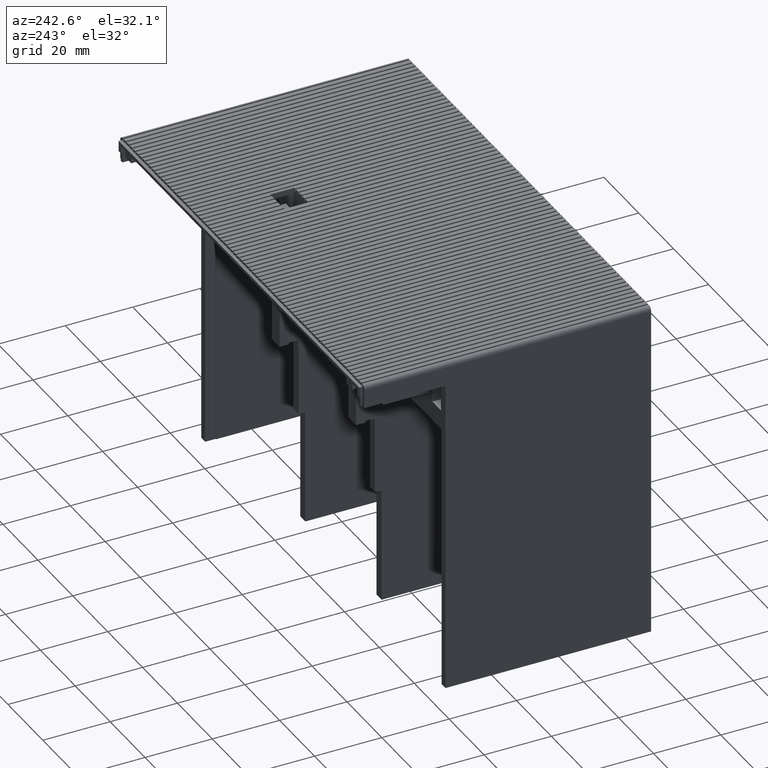
[diagram: clean part render]
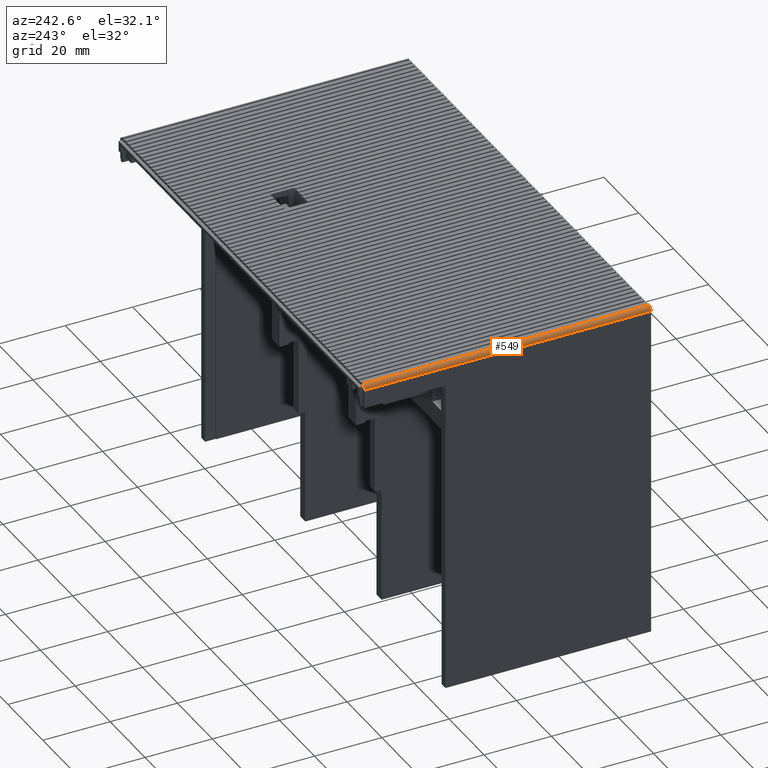
[diagram: same view with one face highlighted and labeled with its STEP entity id]
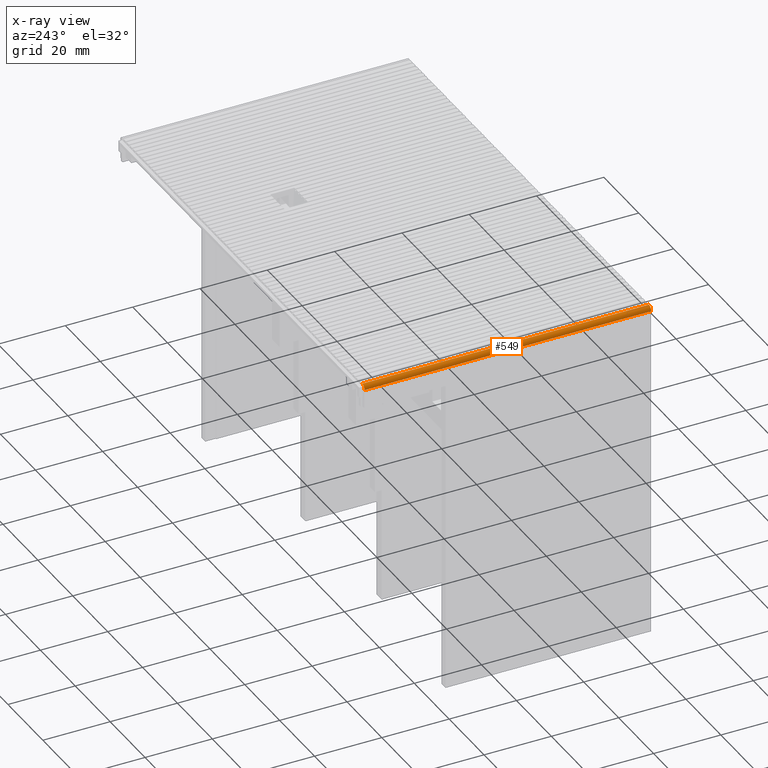
[diagram: x-ray of the same camera — body ghosted, the highlighted face saturated]
A machine part, auxiliary view. The second image highlights one B-rep face of the part: STEP entity #549.
The next image is the same camera in x-ray: the body ghosted, the highlighted face saturated — about 0% of this face is hidden behind the body in this view.
In plain terms, the highlighted cylindrical surface (edge-blend (fillet) strip) has radius 1.3 mm, axis along (-0, -1, -0).
Its self-contained STEP definition (entity closure, byte-faithful):
#549 = ADVANCED_FACE( '', ( #1574 ), #1575, .T. );
#1574 = FACE_OUTER_BOUND( '', #3084, .T. );
#1575 = CYLINDRICAL_SURFACE( '', #3085, 1.30000000000000 );
#3084 = EDGE_LOOP( '', ( #4660, #4661, #4662, #4663 ) );
#3085 = AXIS2_PLACEMENT_3D( '', #4664, #4665, #4666 );
#4660 = ORIENTED_EDGE( '', *, *, #9588, .F. );
#4661 = ORIENTED_EDGE( '', *, *, #9589, .F. );
#4662 = ORIENTED_EDGE( '', *, *, #9590, .T. );
#4663 = ORIENTED_EDGE( '', *, *, #9591, .T. );
#4664 = CARTESIAN_POINT( '', ( -68.7000000000000, -85.2000000000000, -1.30000000000001 ) );
#4665 = DIRECTION( '', ( -0.000000000000000, -1.00000000000000, -0.000000000000000 ) );
#4666 = DIRECTION( '', ( 0.000000000000000, -0.000000000000000, 1.00000000000000 ) );
#9588 = EDGE_CURVE( '', #11634, #11635, #11636, .T. );
#9589 = EDGE_CURVE( '', #11637, #11634, #11638, .T. );
#9590 = EDGE_CURVE( '', #11637, #11639, #11640, .T. );
#9591 = EDGE_CURVE( '', #11639, #11635, #11641, .T. );
#11634 = VERTEX_POINT( '', #14674 );
#11635 = VERTEX_POINT( '', #14675 );
#11636 = CIRCLE( '', #14676, 1.30000000000000 );
#11637 = VERTEX_POINT( '', #14677 );
#11638 = LINE( '', #14678, #14679 );
#11639 = VERTEX_POINT( '', #14680 );
#11640 = CIRCLE( '', #14681, 1.30000000000000 );
#11641 = LINE( '', #14682, #14683 );
#14674 = CARTESIAN_POINT( '', ( -70.0000000000000, 0.000000000000000, -1.30000000000000 ) );
#14675 = CARTESIAN_POINT( '', ( -68.7000000000000, 0.000000000000000, -1.06251812903579E-14 ) );
#14676 = AXIS2_PLACEMENT_3D( '', #19002, #19003, #19004 );
#14677 = CARTESIAN_POINT( '', ( -70.0000000000000, -85.2000000000000, -1.30000000000000 ) );
#14678 = CARTESIAN_POINT( '', ( -70.0000000000000, -85.2000000000000, -1.30000000000000 ) );
#14679 = VECTOR( '', #19005, 1000.00000000000 );
#14680 = CARTESIAN_POINT( '', ( -68.7000000000000, -85.2000000000000, -1.06251812903579E-14 ) );
#14681 = AXIS2_PLACEMENT_3D( '', #19006, #19007, #19008 );
#14682 = CARTESIAN_POINT( '', ( -68.7000000000000, -85.2000000000000, -1.06251812903579E-14 ) );
#14683 = VECTOR( '', #19009, 1000.00000000000 );
#19002 = CARTESIAN_POINT( '', ( -68.7000000000000, 0.000000000000000, -1.30000000000001 ) );
#19003 = DIRECTION( '', ( -0.000000000000000, 1.00000000000000, 0.000000000000000 ) );
#19004 = DIRECTION( '', ( 1.00000000000000, 0.000000000000000, 0.000000000000000 ) );
#19005 = DIRECTION( '', ( 0.000000000000000, 1.00000000000000, 0.000000000000000 ) );
#19006 = CARTESIAN_POINT( '', ( -68.7000000000000, -85.2000000000000, -1.30000000000001 ) );
#19007 = DIRECTION( '', ( -0.000000000000000, 1.00000000000000, 0.000000000000000 ) );
#19008 = DIRECTION( '', ( 1.00000000000000, 0.000000000000000, 0.000000000000000 ) );
#19009 = DIRECTION( '', ( 0.000000000000000, 1.00000000000000, 0.000000000000000 ) );